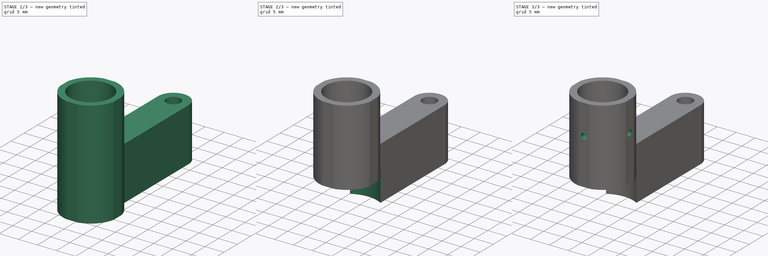
[diagram: build sequence overview — one tinted view per stage of 3, left to right]
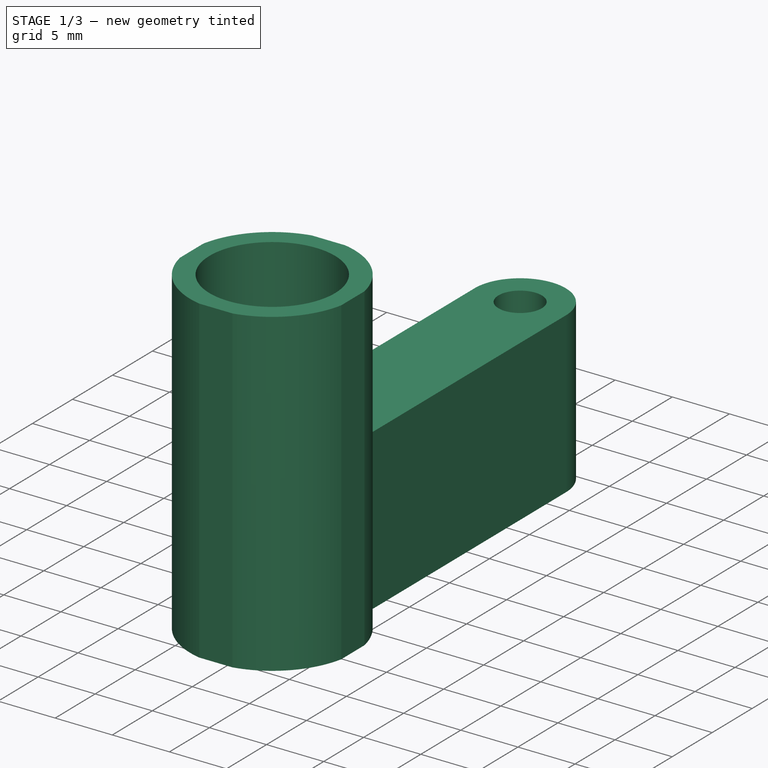
[diagram: stage 1 of 3 — iso view after this stage's code; geometry added in this stage tinted green]
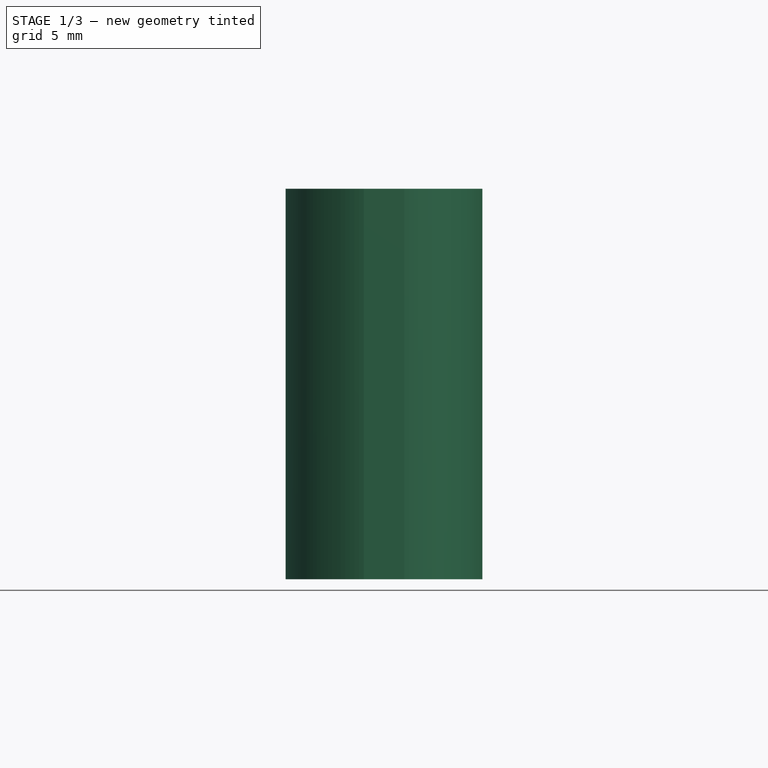
[diagram: stage 1 of 3 — front view after this stage's code; geometry added in this stage tinted green]
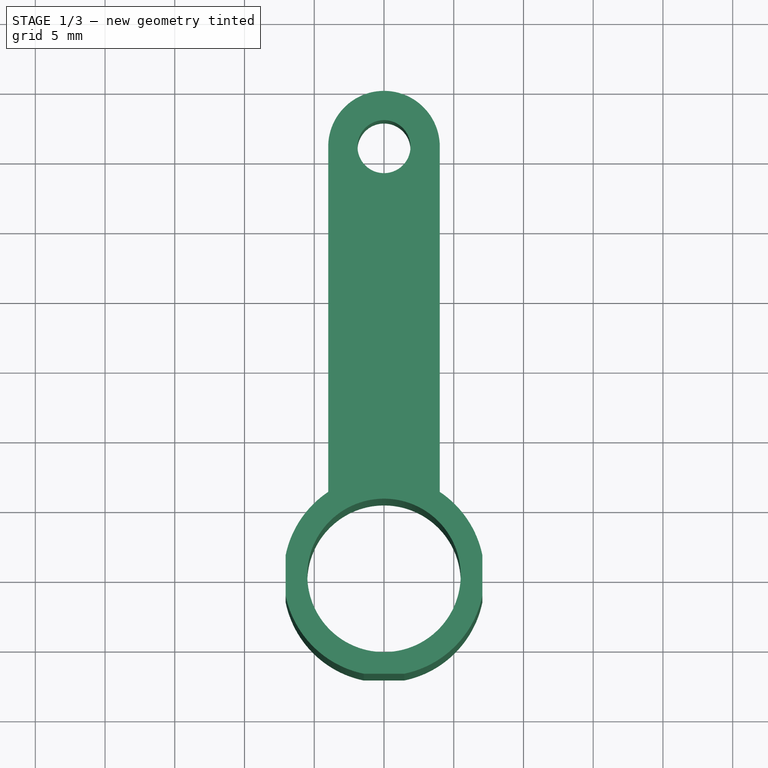
[diagram: stage 1 of 3 — top view after this stage's code; geometry added in this stage tinted green]
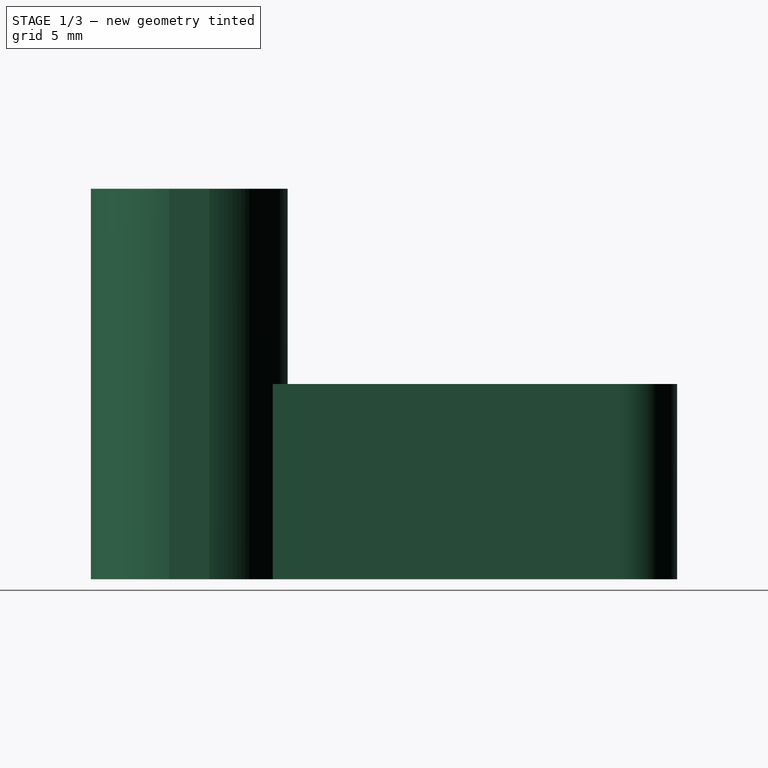
[diagram: stage 1 of 3 — right view after this stage's code; geometry added in this stage tinted green]
FCSTD DOCUMENT  (FreeCAD 0.16R6151 (Git))
Label: SuckerHolder2
License: All rights reserved
LicenseURL: http://en.wikipedia.org/wiki/All_rights_reserved
objects: Sketcher::SketchObject×5, PartDesign::Pocket×3, PartDesign::Pad×2
note: 15 computed .brp shape members not serialized (recipe doc carries the construction recipe); baked Part::Feature solids carry a one-line shape summary decoded from their .brp

FEATURE [Sketcher::SketchObject] Sketch006  label="Sketch000"
  sketch-geometry (12):
    g0: Circle CenterX=0 CenterY=0 CenterZ=0 NormalX=0 NormalY=0 NormalZ=1 Radius=5.5
    g1: LineSegment StartX=-7.05248 StartY=1.45 StartZ=0 EndX=-7.05248 EndY=-1.45 EndZ=0
    g2: LineSegment StartX=7.05248 StartY=1.45 StartZ=0 EndX=7.05248 EndY=-1.45 EndZ=0
    g3: LineSegment StartX=-1.45 StartY=-7.05248 StartZ=0 EndX=1.45 EndY=-7.05248 EndZ=0
    g4: ArcOfCircle CenterX=0 CenterY=0 CenterZ=0 NormalX=0 NormalY=0 NormalZ=1 Radius=7.2 StartAngle=2.15983 EndAngle=2.93882
    g5: ArcOfCircle CenterX=0 CenterY=0 CenterZ=0 NormalX=0 NormalY=0 NormalZ=1 Radius=7.2 StartAngle=0.202776 EndAngle=0.981765
    g6: ArcOfCircle CenterX=0 CenterY=0 CenterZ=0 NormalX=0 NormalY=0 NormalZ=1 Radius=7.2 StartAngle=3.34437 EndAngle=4.50961
    g7: ArcOfCircle CenterX=0 CenterY=0 CenterZ=0 NormalX=0 NormalY=0 NormalZ=1 Radius=7.2 StartAngle=4.91516 EndAngle=6.08041
    g8: LineSegment StartX=-4 StartY=5.98665 StartZ=0 EndX=-4 EndY=30.9867 EndZ=0
    g9: LineSegment StartX=4 StartY=5.98665 StartZ=0 EndX=4 EndY=30.9867 EndZ=0
    g10: ArcOfCircle CenterX=0 CenterY=30.9867 CenterZ=0 NormalX=0 NormalY=0 NormalZ=1 Radius=4 StartAngle=0 EndAngle=3.14159
    g11: Circle CenterX=0 CenterY=30.9867 CenterZ=0 NormalX=0 NormalY=0 NormalZ=1 Radius=1.9
  constraints (35):
    c: Coincident(g0,g-1)
    c: Radius(g0) = 5.5
    c: Vertical(g1)
    c: Horizontal(g3)
    c: Equal(g2,g3)
    c: Equal(g3,g1)
    c: Distance(g3) = 2.9
    c: Vertical(g2)
    c: Coincident(g4,g-1)
    c: Coincident(g4,g1)
    c: Coincident(g5,g-1)
    c: Coincident(g5,g2)
    c: Coincident(g6,g-1)
    c: Coincident(g6,g1)
    c: Coincident(g6,g3)
    c: Coincident(g7,g-1)
    c: Coincident(g7,g3)
    c: Coincident(g7,g2)
    c: Equal(g6,g4)
    c: Equal(g5,g7)
    c: Radius(g4) = 7.2
    c: Symmetric(g4,g5,g-2)
    c: Coincident(g8,g4)
    c: Vertical(g8)
    c: Coincident(g9,g5)
    c: Vertical(g9)
    c: PointOnObject(g10,g-2)
    c: Coincident(g10,g8)
    c: Coincident(g10,g9)
    c: DistanceY(g9) = 25
    c: Equal(g8,g9)
    c: DistanceX(g4,g5) = 8
    c: Coincident(g11,g10)
    c: Radius(g11) = 1.9
    c: Symmetric(g8,g9,g10)
FEATURE [PartDesign::Pad] Pad
  Length = 14
  Length2 = 100
  Sketch = -> Sketch006
  Type = 0
FEATURE [Sketcher::SketchObject] Sketch001
  Support = -> Pad [Face14]
  sketch-geometry (9):
    g0: Circle CenterX=0 CenterY=0 CenterZ=0 NormalX=0 NormalY=0 NormalZ=1 Radius=5.5
    g1: LineSegment StartX=-7.05248 StartY=1.45 StartZ=0 EndX=-7.05248 EndY=-1.45 EndZ=0
    g2: LineSegment StartX=7.05248 StartY=1.45 StartZ=0 EndX=7.05248 EndY=-1.45 EndZ=0
    g3: LineSegment StartX=-1.45 StartY=-7.05248 StartZ=0 EndX=1.45 EndY=-7.05248 EndZ=0
    g4: ArcOfCircle CenterX=0 CenterY=0 CenterZ=0 NormalX=0 NormalY=0 NormalZ=1 Radius=7.2 StartAngle=1.77357 EndAngle=2.93882
    g5: ArcOfCircle CenterX=0 CenterY=0 CenterZ=0 NormalX=0 NormalY=0 NormalZ=1 Radius=7.2 StartAngle=0.202776 EndAngle=1.36802
    g6: ArcOfCircle CenterX=0 CenterY=0 CenterZ=0 NormalX=0 NormalY=0 NormalZ=1 Radius=7.2 StartAngle=3.34437 EndAngle=4.50961
    g7: ArcOfCircle CenterX=0 CenterY=0 CenterZ=0 NormalX=0 NormalY=0 NormalZ=1 Radius=7.2 StartAngle=4.91516 EndAngle=6.08041
    g8: LineSegment StartX=-1.45 StartY=7.05248 StartZ=0 EndX=1.45 EndY=7.05248 EndZ=0
  constraints (26):
    c: Coincident(g0,g-1)
    c: Radius(g0) = 5.5
    c: Vertical(g1)
    c: Horizontal(g3)
    c: Equal(g2,g3)
    c: Equal(g3,g1)
    c: Distance(g3) = 2.9
    c: Vertical(g2)
    c: Coincident(g4,g-1)
    c: Coincident(g4,g1)
    c: Coincident(g5,g-1)
    c: Coincident(g5,g2)
    c: Coincident(g6,g-1)
    c: Coincident(g6,g1)
    c: Coincident(g6,g3)
    c: Coincident(g7,g-1)
    c: Coincident(g7,g3)
    c: Coincident(g7,g2)
    c: Equal(g6,g4)
    c: Equal(g5,g7)
    c: Radius(g4) = 7.2
    c: Coincident(g8,g4)
    c: Coincident(g8,g5)
    c: Horizontal(g8)
    c: Equal(g8,g1)
    c: Symmetric(g4,g5,g-2)
FEATURE [PartDesign::Pad] Pad001
  Length = 14
  Length2 = 100
  Sketch = -> Sketch001
  Type = 0
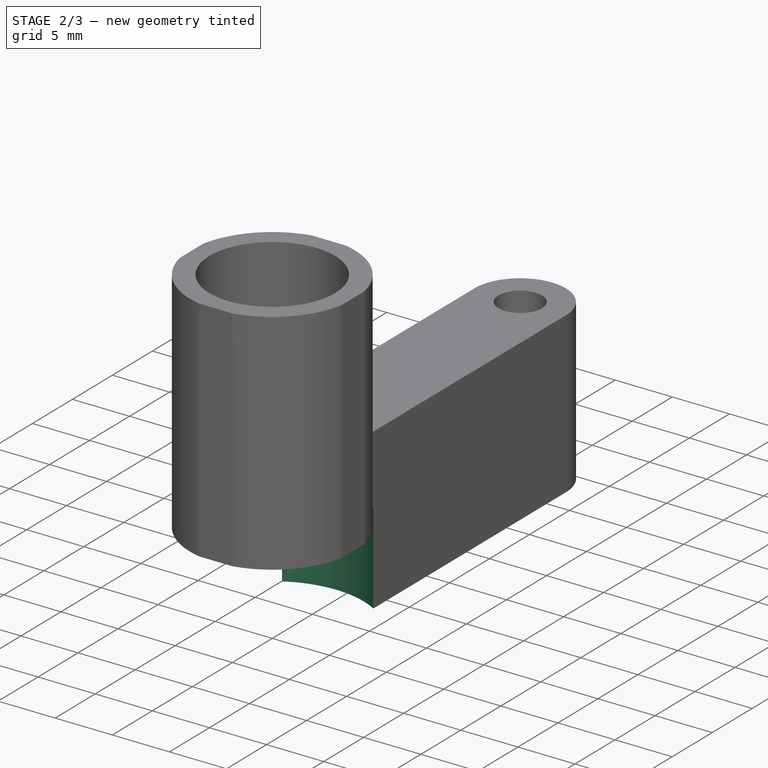
[diagram: stage 2 of 3 — iso view after this stage's code; geometry added in this stage tinted green]
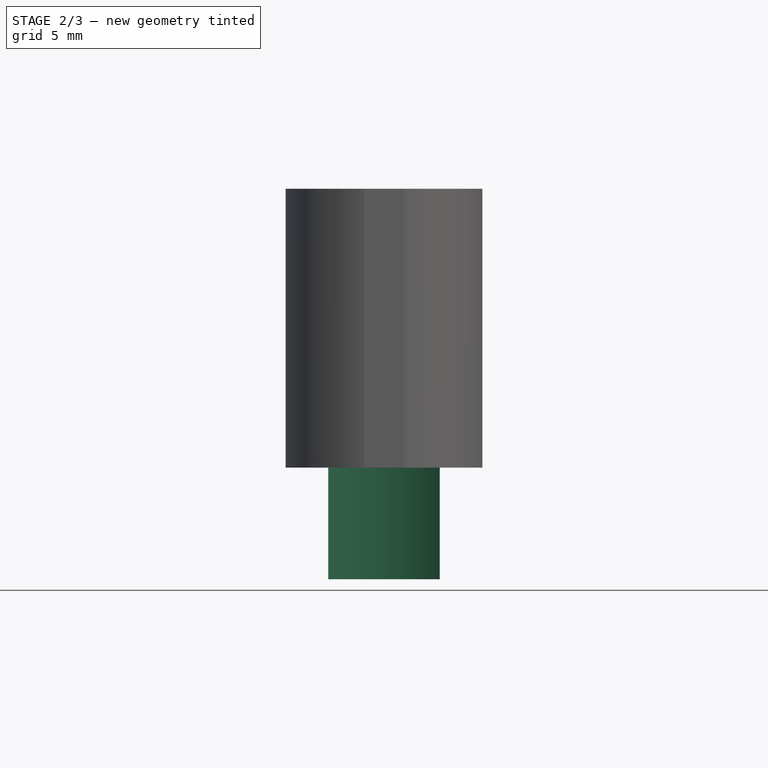
[diagram: stage 2 of 3 — front view after this stage's code; geometry added in this stage tinted green]
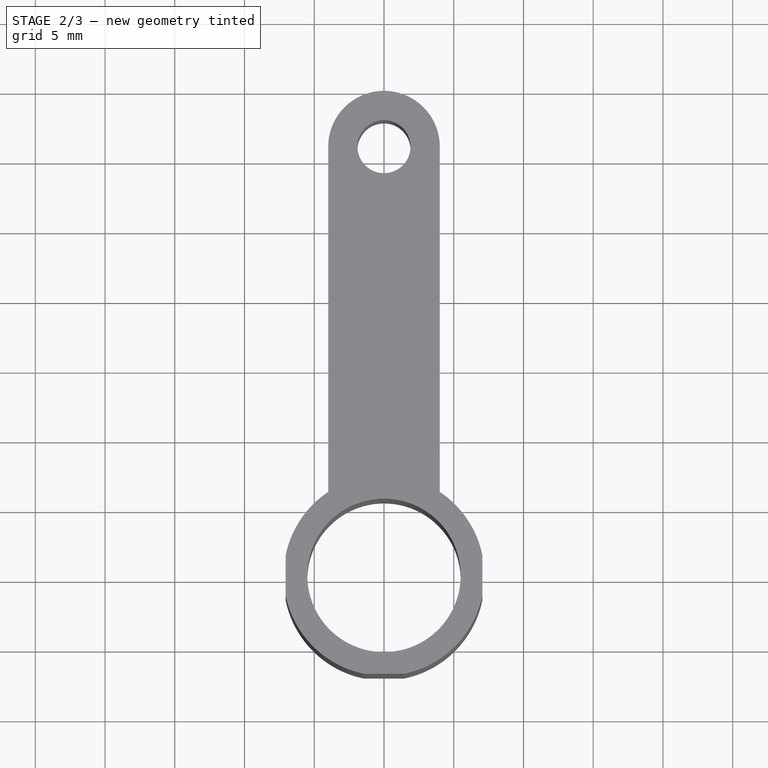
[diagram: stage 2 of 3 — top view after this stage's code; geometry added in this stage tinted green]
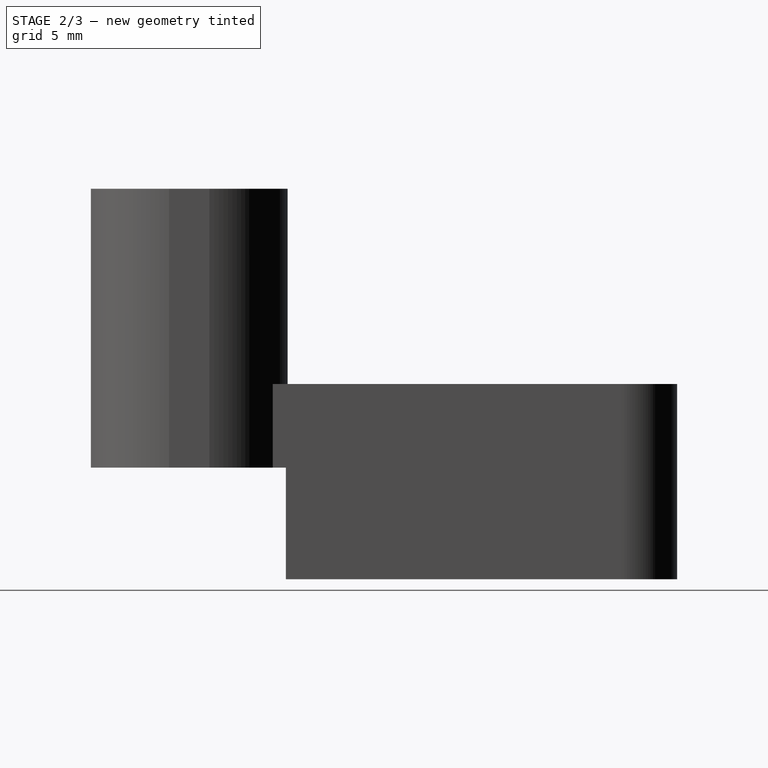
[diagram: stage 2 of 3 — right view after this stage's code; geometry added in this stage tinted green]
FEATURE [Sketcher::SketchObject] Sketch005
  Support = -> Pad001 [Face4]
  sketch-geometry (1):
    g0: Circle CenterX=0 CenterY=0 CenterZ=0 NormalX=0 NormalY=0 NormalZ=1 Radius=8
  constraints (2):
    c: Coincident(g0,g-1)
    c: Radius(g0) = 8
FEATURE [PartDesign::Pocket] Pocket
  Length = 8
  Sketch = -> Sketch005
  Type = 0
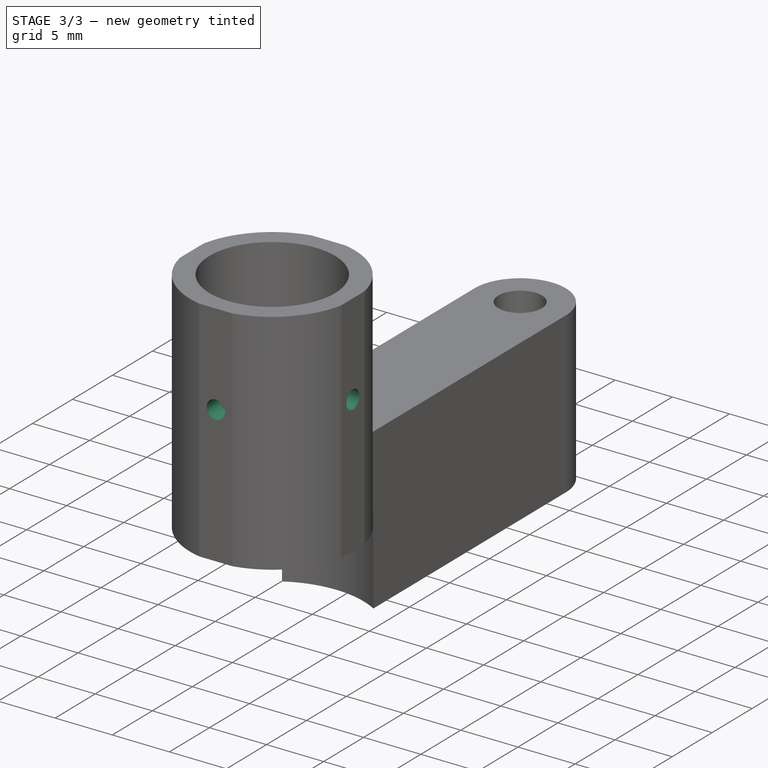
[diagram: stage 3 of 3 — iso view after this stage's code; geometry added in this stage tinted green]
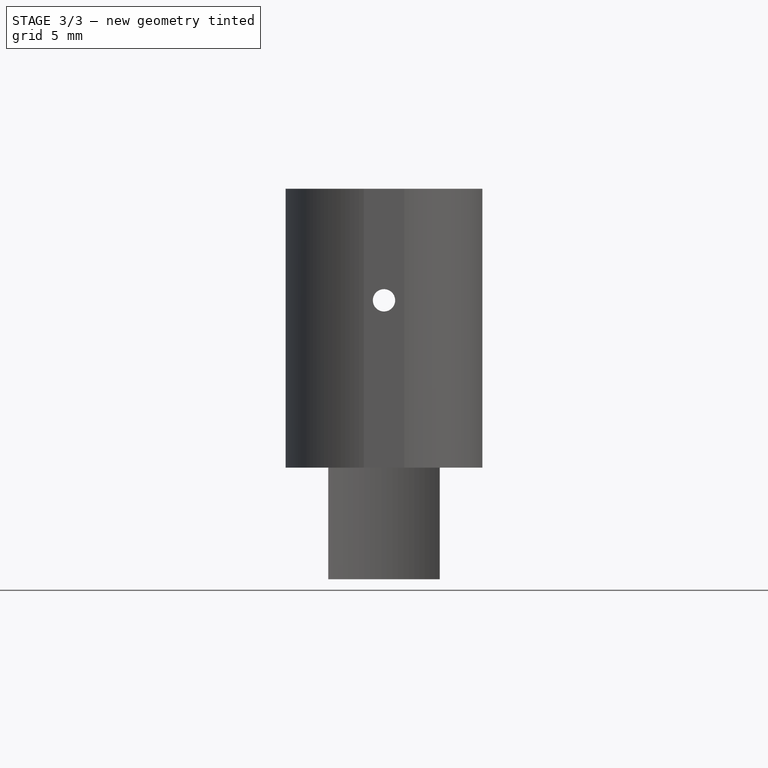
[diagram: stage 3 of 3 — front view after this stage's code; geometry added in this stage tinted green]
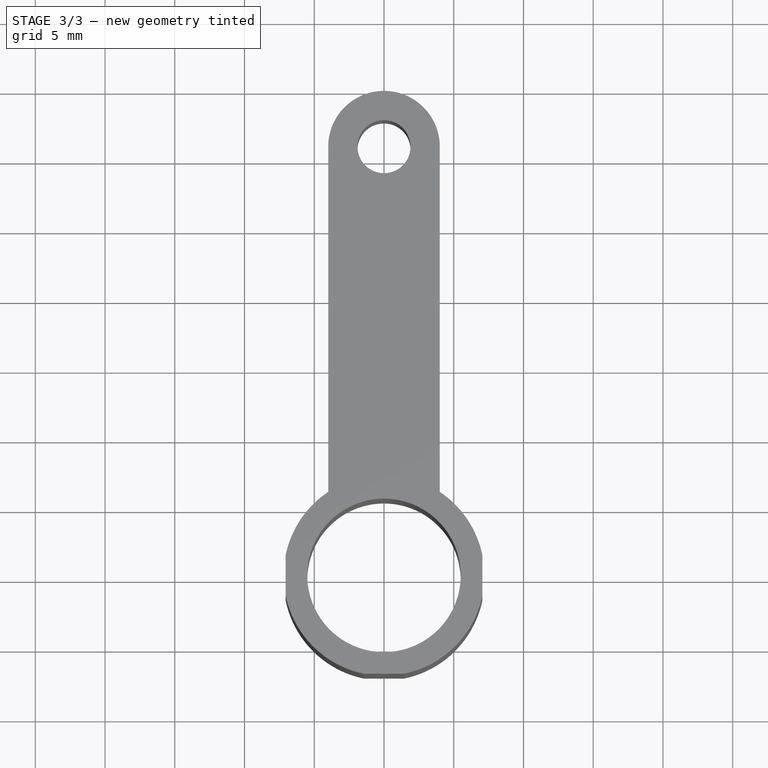
[diagram: stage 3 of 3 — top view after this stage's code; geometry added in this stage tinted green]
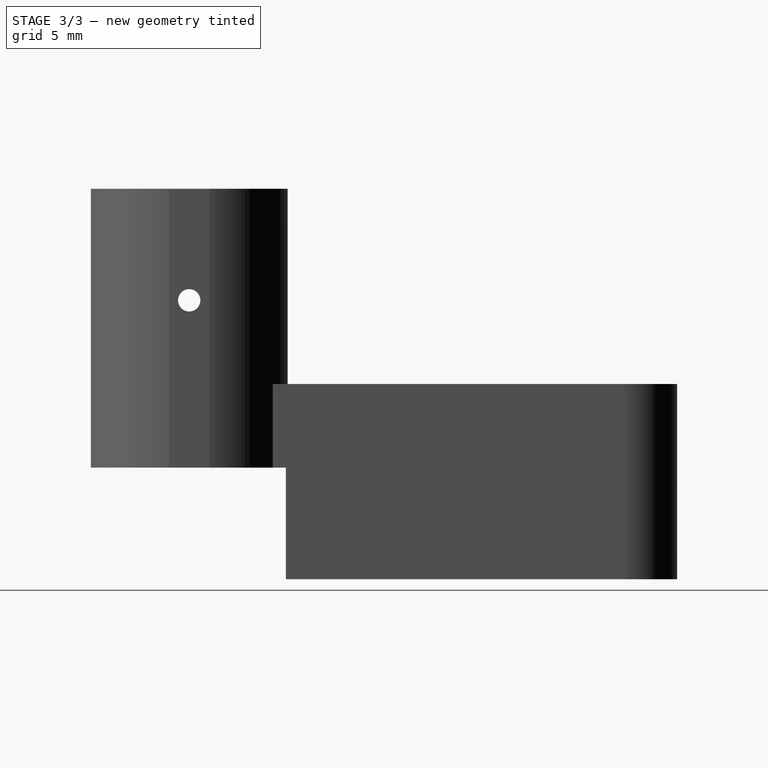
[diagram: stage 3 of 3 — right view after this stage's code; geometry added in this stage tinted green]
FEATURE [Sketcher::SketchObject] Sketch004
  Support = -> Pocket [Face22]
  sketch-geometry (1):
    g0: Circle CenterX=0 CenterY=20 CenterZ=0 NormalX=0 NormalY=0 NormalZ=1 Radius=0.8
  constraints (3):
    c: PointOnObject(g0,g-2)
    c: DistanceY(g-1,g0) = 20
    c: Radius(g0) = 0.8
FEATURE [PartDesign::Pocket] Pocket001
  Length = 5
  Sketch = -> Sketch004
  Type = 1
FEATURE [Sketcher::SketchObject] Sketch002
  Support = -> Pocket001 [Face20]
  sketch-geometry (1):
    g0: Circle CenterX=0 CenterY=20 CenterZ=0 NormalX=0 NormalY=0 NormalZ=1 Radius=0.8
  constraints (3):
    c: PointOnObject(g0,g-2)
    c: DistanceY(g-1,g0) = 20
    c: Radius(g0) = 0.8
FEATURE [PartDesign::Pocket] Pocket002
  Length = 5
  Sketch = -> Sketch002
  Type = 1
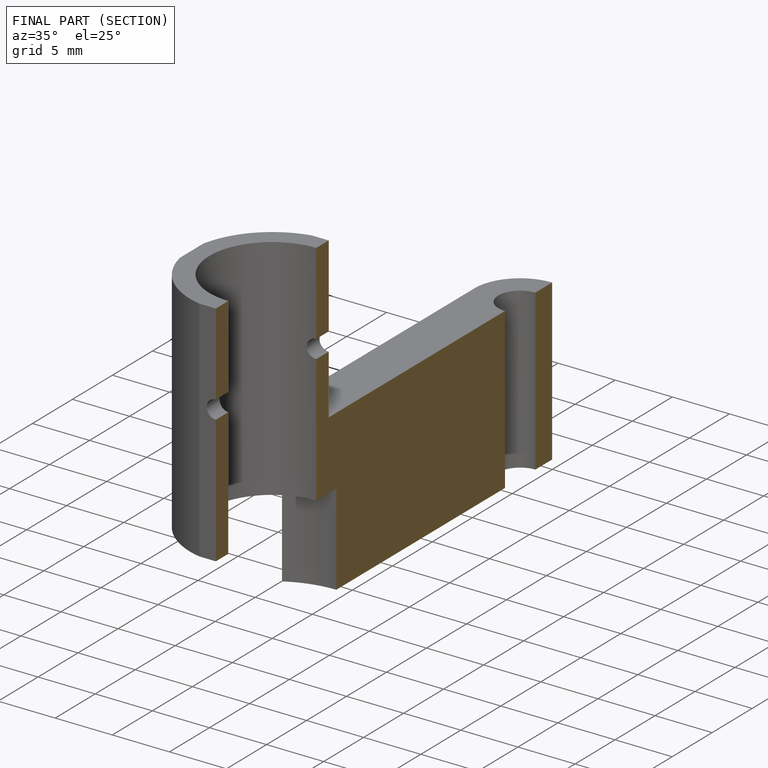
[diagram: finished part — half-section view (interior)]
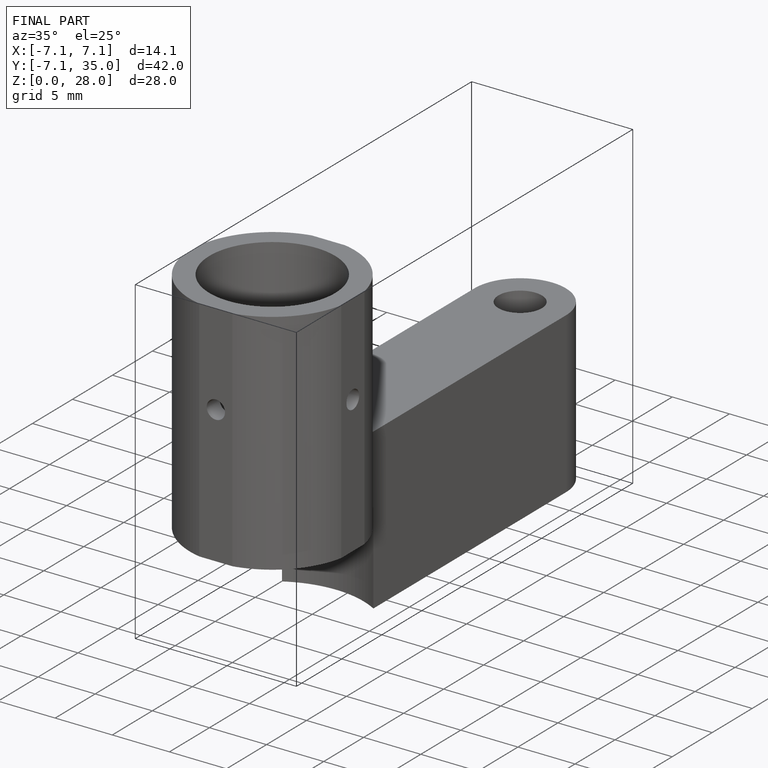
[diagram: finished part — iso view with bounding-box wireframe]
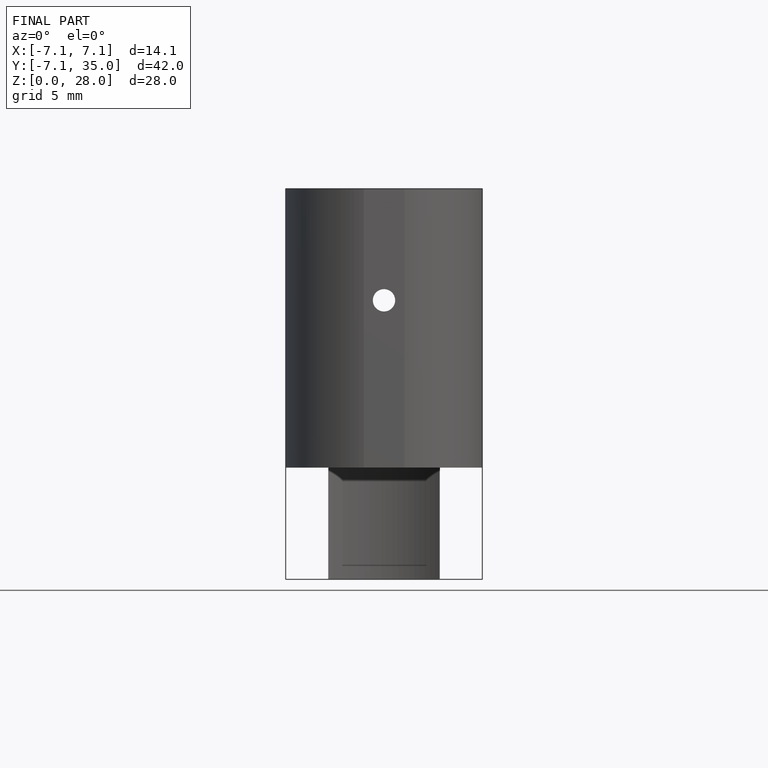
[diagram: finished part — front view with bounding-box wireframe]
